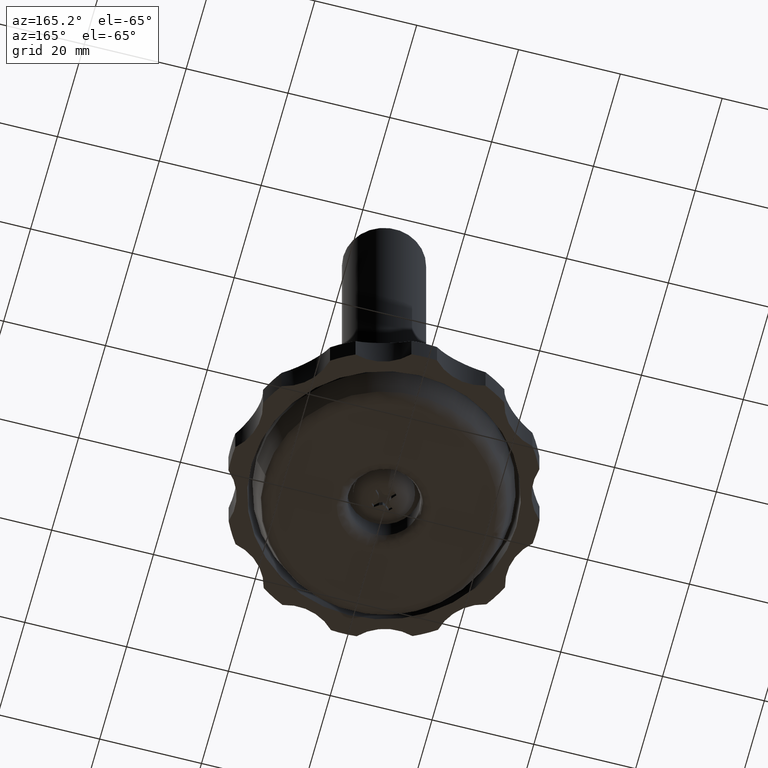
[diagram: clean part render]
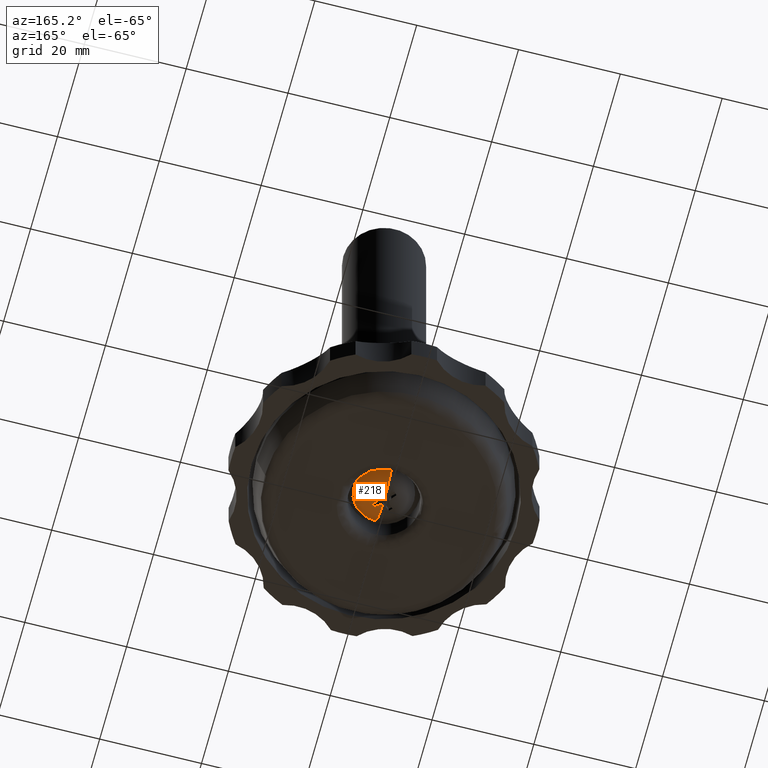
[diagram: same view with one face highlighted and labeled with its STEP entity id]
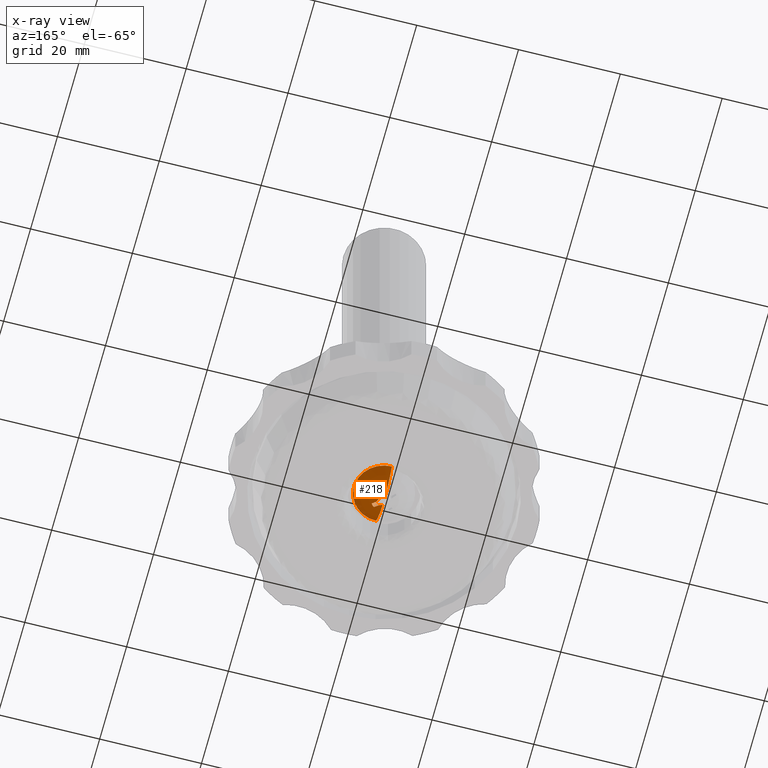
[diagram: x-ray of the same camera — body ghosted, the highlighted face saturated]
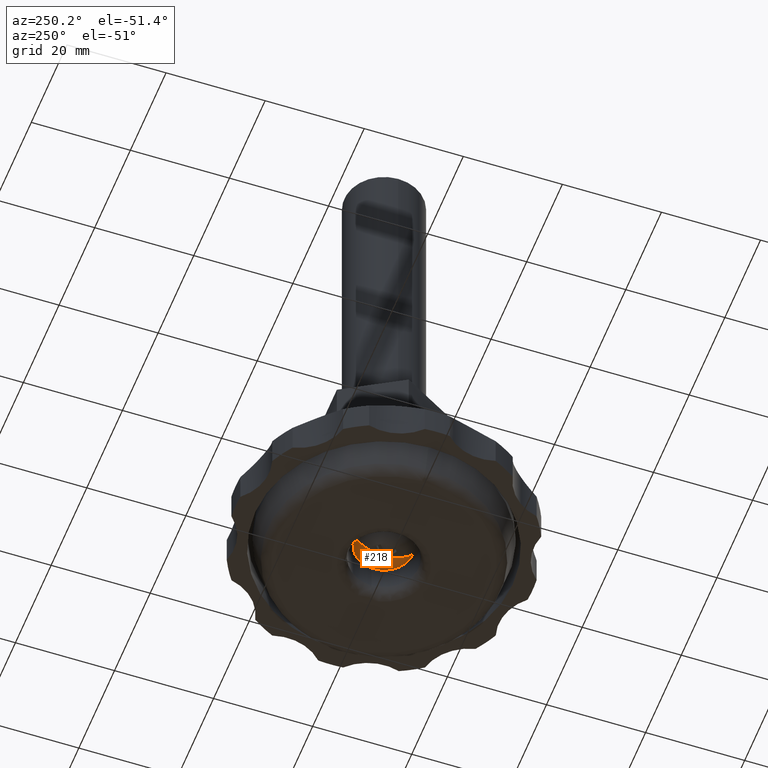
[diagram: same view with one face highlighted and labeled with its STEP entity id]
A machine part, auxiliary view. The second image highlights one B-rep face of the part: STEP entity #218.
The next image is the same camera in x-ray: the body ghosted, the highlighted face saturated — about 0% of this face is hidden behind the body in this view.
A second angle (auxiliary view) of the same face is appended — the face is thin or edge-on in the first view.
In plain terms, the highlighted spherical surface has radius 7.3017 mm.
Its self-contained STEP definition (entity closure, byte-faithful):
#218=ADVANCED_FACE('',(#618),#617,.T.);
#617=SPHERICAL_SURFACE('',#1550,7.30166666667E+00);
#618=FACE_OUTER_BOUND('',#1551,.T.);
#1547=CARTESIAN_POINT('',(0.00000000000E+00,0.00000000000E+00,1.25016666667E+01));
#1548=DIRECTION('',(0.00000000000E+00,0.00000000000E+00,-1.00000000000E+00));
#1549=DIRECTION('',(-2.83280989415E-16,1.00000000000E+00,0.00000000000E+00));
#1550=AXIS2_PLACEMENT_3D('',#1547,#1548,#1549);
#1551=EDGE_LOOP('',(#2333,#2334,#2335,#2336,#2337,#2338,#2339,#2340,#2341,#2342,#2343,#2344,#2345));
#2333=ORIENTED_EDGE('',*,*,#2717,.T.);
#2334=ORIENTED_EDGE('',*,*,#2775,.T.);
#2335=ORIENTED_EDGE('',*,*,#2771,.T.);
#2336=ORIENTED_EDGE('',*,*,#2772,.T.);
#2337=ORIENTED_EDGE('',*,*,#2712,.T.);
#2338=ORIENTED_EDGE('',*,*,#2709,.T.);
#2339=ORIENTED_EDGE('',*,*,#2715,.T.);
#2340=ORIENTED_EDGE('',*,*,#2764,.T.);
#2341=ORIENTED_EDGE('',*,*,#2763,.T.);
#2342=ORIENTED_EDGE('',*,*,#2765,.T.);
#2343=ORIENTED_EDGE('',*,*,#2760,.T.);
#2344=ORIENTED_EDGE('',*,*,#2758,.T.);
#2345=ORIENTED_EDGE('',*,*,#2776,.F.);
#2709=EDGE_CURVE('',#3032,#3046,#3053,.T.);
#2712=EDGE_CURVE('',#3060,#3032,#3073,.T.);
#2715=EDGE_CURVE('',#3046,#3086,#3093,.T.);
#2717=EDGE_CURVE('',#3107,#3099,#3108,.T.);
#2758=EDGE_CURVE('',#3377,#3364,#3384,.T.);
#2760=EDGE_CURVE('',#3390,#3377,#3397,.T.);
#2763=EDGE_CURVE('',#3403,#3410,#3417,.T.);
#2764=EDGE_CURVE('',#3086,#3403,#3423,.T.);
#2765=EDGE_CURVE('',#3410,#3390,#3429,.T.);
#2771=EDGE_CURVE('',#3448,#3461,#3468,.T.);
#2772=EDGE_CURVE('',#3461,#3060,#3474,.T.);
#2775=EDGE_CURVE('',#3099,#3448,#3492,.T.);
#2776=EDGE_CURVE('',#3107,#3364,#3498,.T.);
#3032=VERTEX_POINT('',#4705);
#3046=VERTEX_POINT('',#4713);
#3053=CIRCLE('',#4720,7.28689987737E+00);
#3060=VERTEX_POINT('',#4722);
#3073=CIRCLE('',#4733,2.50000000000E+00);
#3086=VERTEX_POINT('',#4738);
#3093=CIRCLE('',#4745,7.23714784168E+00);
#3099=VERTEX_POINT('',#4746);
#3107=VERTEX_POINT('',#4752);
#3108=CIRCLE('',#4756,5.90000000000E+00);
#3364=VERTEX_POINT('',#4911);
#3377=VERTEX_POINT('',#4919);
#3384=CIRCLE('',#4926,7.23723994764E+00);
#3390=VERTEX_POINT('',#4927);
#3397=CIRCLE('',#4934,7.28704223031E+00);
#3403=VERTEX_POINT('',#4935);
#3410=VERTEX_POINT('',#4939);
#3417=CIRCLE('',#4946,7.28690239150E+00);
#3423=CIRCLE('',#4950,7.23711870020E+00);
#3429=CIRCLE('',#4954,2.50000000000E+00);
#3448=VERTEX_POINT('',#4963);
#3461=VERTEX_POINT('',#4971);
#3468=CIRCLE('',#4978,7.23708539664E+00);
#3474=CIRCLE('',#4982,7.28703985276E+00);
#3492=(BOUNDED_CURVE() B_SPLINE_CURVE(2,(#4987,#4988,#4989),.UNSPECIFIED.,.F.,.F.) B_SPLINE_CURVE_WITH_KNOTS((3,3),(0.00000000000E+00,9.99874347447E-01),.UNSPECIFIED.) CURVE() GEOMETRIC_REPRESENTATION_ITEM() RATIONAL_B_SPLINE_CURVE((1.00000000000E+00,9.21219301708E-01,9.99980202008E-01)) REPRESENTATION_ITEM('') );
#3498=(BOUNDED_CURVE() B_SPLINE_CURVE(2,(#4990,#4991,#4992),.UNSPECIFIED.,.F.,.F.) B_SPLINE_CURVE_WITH_KNOTS((3,3),(0.00000000000E+00,1.00000000000E+00),.UNSPECIFIED.) CURVE() GEOMETRIC_REPRESENTATION_ITEM() RATIONAL_B_SPLINE_CURVE((7.50000000000E-01,6.90907051101E-01,7.50000000000E-01)) REPRESENTATION_ITEM('') );
#4705=CARTESIAN_POINT('',(2.03963226433E+00,-1.44564872161E+00,5.64132147775E+00));
#4713=CARTESIAN_POINT('',(1.26572100000E+00,-6.43467000000E-01,5.33938793143E+00));
#4717=CARTESIAN_POINT('',(3.34029958591E-01,3.22258087681E-01,1.25016666667E+01));
#4718=DIRECTION('',(7.19674426342E-01,6.94311687982E-01,0.00000000000E+00));
#4719=DIRECTION('',(6.94311687982E-01,-7.19674426342E-01,-0.00000000000E+00));
#4720=AXIS2_PLACEMENT_3D('',#4717,#4718,#4719);
#4722=CARTESIAN_POINT('',(1.44564911898E+00,-2.03963198269E+00,5.64132147775E+00));
#4730=CARTESIAN_POINT('',(0.00000000000E+00,0.00000000000E+00,5.64132147775E+00));
#4731=DIRECTION('',(-0.00000000000E+00,0.00000000000E+00,1.00000000000E+00));
#4732=DIRECTION('',(-1.00000000000E+00,-0.00000000000E+00,-0.00000000000E+00));
#4733=AXIS2_PLACEMENT_3D('',#4730,#4731,#4732);
#4738=CARTESIAN_POINT('',(1.03096200000E+00,0.00000000000E+00,5.27314998164E+00));
#4742=CARTESIAN_POINT('',(9.09856259210E-01,3.31947008247E-01,1.25016666667E+01));
#4743=DIRECTION('',(9.39431383522E-01,3.42737035721E-01,0.00000000000E+00));
#4744=DIRECTION('',(3.42737035721E-01,-9.39431383522E-01,-0.00000000000E+00));
#4745=AXIS2_PLACEMENT_3D('',#4742,#4743,#4744);
#4746=CARTESIAN_POINT('',(-1.58802941861E-07,-5.90000000000E+00,8.20000000000E+00));
#4752=CARTESIAN_POINT('',(6.12313901473E-04,5.89999996823E+00,8.20000000000E+00));
#4753=CARTESIAN_POINT('',(0.00000000000E+00,0.00000000000E+00,8.20000000000E+00));
#4754=DIRECTION('',(-0.00000000000E+00,0.00000000000E+00,-1.00000000000E+00));
#4755=DIRECTION('',(-1.00000000000E+00,-1.22460635382E-16,0.00000000000E+00));
#4756=AXIS2_PLACEMENT_3D('',#4753,#4754,#4755);
#4911=CARTESIAN_POINT('',(7.06999999991E-04,1.03025500000E+00,5.27304921613E+00));
#4919=CARTESIAN_POINT('',(6.43467000000E-01,1.26430700000E+00,5.33913819267E+00));
#4923=CARTESIAN_POINT('',(-3.31150246384E-01,9.09413858313E-01,1.25016666667E+01));
#4924=DIRECTION('',(-3.42157608222E-01,9.39642576268E-01,0.00000000000E+00));
#4925=DIRECTION('',(9.39642576268E-01,3.42157608222E-01,-0.00000000000E+00));
#4926=AXIS2_PLACEMENT_3D('',#4923,#4924,#4925);
#4927=CARTESIAN_POINT('',(1.44564912574E+00,2.03963197789E+00,5.64132147775E+00));
#4931=CARTESIAN_POINT('',(-3.21005531287E-01,3.32125117601E-01,1.25016666667E+01));
#4932=DIRECTION('',(-6.94967536400E-01,7.19041113811E-01,0.00000000000E+00));
#4933=DIRECTION('',(7.19041113811E-01,6.94967536400E-01,-0.00000000000E+00));
#4934=AXIS2_PLACEMENT_3D('',#4931,#4932,#4933);
#4935=CARTESIAN_POINT('',(1.26501400000E+00,6.42760000000E-01,5.33919954470E+00));
#4939=CARTESIAN_POINT('',(2.03963225929E+00,1.44564872873E+00,5.64132147775E+00));
#4943=CARTESIAN_POINT('',(3.33996374195E-01,-3.22236046825E-01,1.25016666667E+01));
#4944=DIRECTION('',(7.19663272107E-01,-6.94323249489E-01,0.00000000000E+00));
#4945=DIRECTION('',(-6.94323249489E-01,-7.19663272107E-01,-0.00000000000E+00));
#4946=AXIS2_PLACEMENT_3D('',#4943,#4944,#4945);
#4947=CARTESIAN_POINT('',(9.10265393171E-01,-3.31460320808E-01,1.25016666667E+01));
#4948=DIRECTION('',(9.39642576268E-01,-3.42157608222E-01,0.00000000000E+00));
#4949=DIRECTION('',(-3.42157608222E-01,-9.39642576268E-01,-0.00000000000E+00));
#4950=AXIS2_PLACEMENT_3D('',#4947,#4948,#4949);
#4951=CARTESIAN_POINT('',(0.00000000000E+00,0.00000000000E+00,5.64132147775E+00));
#4952=DIRECTION('',(-0.00000000000E+00,0.00000000000E+00,1.00000000000E+00));
#4953=DIRECTION('',(-1.00000000000E+00,-0.00000000000E+00,-0.00000000000E+00));
#4954=AXIS2_PLACEMENT_3D('',#4951,#4952,#4953);
#4963=CARTESIAN_POINT('',(5.42101086243E-17,-1.03096200000E+00,5.27314998164E+00));
#4971=CARTESIAN_POINT('',(6.44174000000E-01,-1.26501400000E+00,5.33932657780E+00));
#4975=CARTESIAN_POINT('',(-3.30902629597E-01,-9.10732958992E-01,1.25016666667E+01));
#4976=DIRECTION('',(-3.41494224032E-01,-9.39883873121E-01,0.00000000000E+00));
#4977=DIRECTION('',(-9.39883873121E-01,3.41494224032E-01,-0.00000000000E+00));
#4978=AXIS2_PLACEMENT_3D('',#4975,#4976,#4977);
#4979=CARTESIAN_POINT('',(-3.21026528058E-01,-3.32156986437E-01,1.25016666667E+01));
#4980=DIRECTION('',(-6.94956562043E-01,-7.19051720583E-01,0.00000000000E+00));
#4981=DIRECTION('',(-7.19051720583E-01,6.94956562043E-01,-0.00000000000E+00));
#4982=AXIS2_PLACEMENT_3D('',#4979,#4980,#4981);
#4987=CARTESIAN_POINT('',(9.48816226051E-16,-5.90000000000E+00,8.20000000000E+00));
#4988=CARTESIAN_POINT('',(6.56687816329E-16,-4.08346528017E+00,5.70851107780E+00));
#4989=CARTESIAN_POINT('',(1.65795507216E-16,-1.03096201953E+00,5.27314998443E+00));
#4990=CARTESIAN_POINT('',(-1.18423789293E-15,5.90000000000E+00,8.20000000000E+00));
#4991=CARTESIAN_POINT('',(-8.03453245162E-16,4.08321747450E+00,5.70817119711E+00));
#4992=CARTESIAN_POINT('',(-1.11022302463E-16,1.03025524258E+00,5.27304921613E+00));